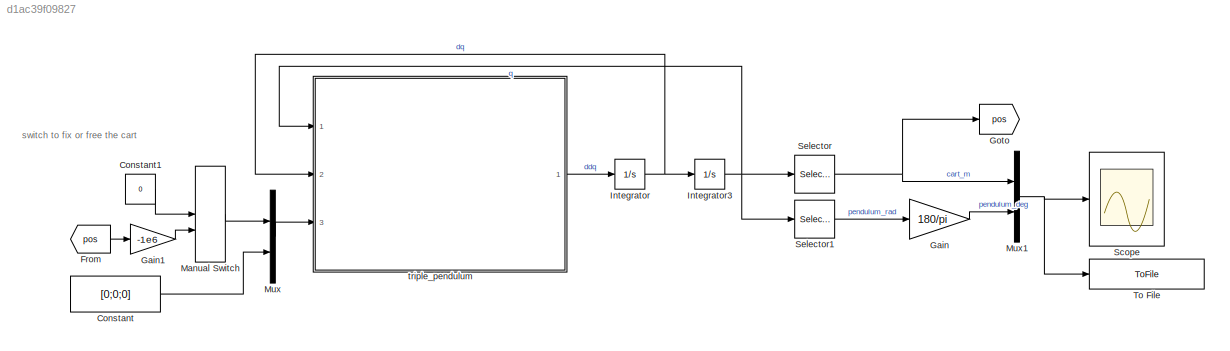
MODEL slx_d1ac39f09827
KIND model
CONFIG AbsTol = auto
CONFIG EnableMultiTasking = off
CONFIG FixedStep = auto
CONFIG MaxStep = auto
CONFIG MinStep = auto
CONFIG RelTol = 1e-3
CONFIG SampleTimeConstraint = Unconstrained
CONFIG SolverName = VariableStepAuto
CONFIG StartTime = 0.0
CONFIG StopTime = 60
BLOCK [Constant] Constant
  Value = [0;0;0]
BLOCK [Constant] Constant1
  Value = 0
BLOCK [From] From
  GotoTag = pos
BLOCK [Gain] Gain
  Gain = 180/pi
BLOCK [Gain] Gain1
  Gain = -1e6
BLOCK [Goto] Goto
  GotoTag = pos
BLOCK [Integrator] Integrator
  InitialCondition = [0;0;0;0]
  Ports = [1, 1]
BLOCK [Integrator] Integrator3
  InitialCondition = [0;2.62;0;0]
  Ports = [1, 1]
BLOCK [ManualSwitch] Manual Switch
BLOCK [Mux] Mux
  DisplayOption = bar
  Inputs = 2
  Ports = [2, 1]
BLOCK [Mux] Mux1
  DisplayOption = bar
  Inputs = 2
  Ports = [2, 1]
BLOCK [Scope] Scope
  Floating = off
  NumInputPorts = 1
  Ports = [1]
  ScopeSpecificationString = Simulink.scopes.TimeScopeBlockCfg('CurrentConfiguration', extmgr.ConfigurationSet(extmgr.Configuration('Core','General UI',true),extmgr.Configuration('Core','Source UI',true),extmgr.Configuration('Sources','WiredSimulink',true,'SampleTime','0.01'),extmgr.Configuration('Visuals','Time Domain',true,'SerializedDisplays',{struct('MinYLimReal','-98.96326','MaxYLimReal','224.90782','YLabelReal','','MinY...<+1504ch>
BLOCK [Selector] Selector
  IndexOptions = Index vector (dialog)
  Indices = 1
  InputPortWidth = 4
  OutputSizes = 1
  Ports = [1, 1]
BLOCK [Selector] Selector1
  IndexOptions = Index vector (dialog)
  Indices = [2,3,4]
  InputPortWidth = 4
  OutputSizes = 1
  Ports = [1, 1]
BLOCK [ToFile] To File
  Filename = data/simout.mat
  MatrixName = position
  Ports = [1]
  SampleTime = 0.01
  SaveFormat = Timeseries
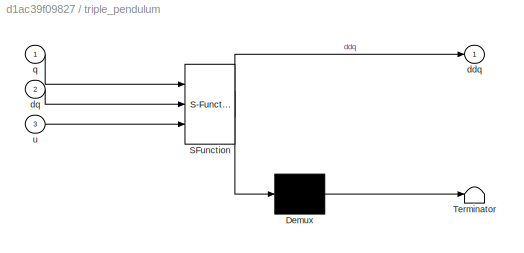
BLOCK [SubSystem] triple_pendulum
  ErrorFcn = Stateflow.Translate.translate
  PermitHierarchicalResolution = ExplicitOnly
  Ports = [3, 1]
  RequestExecContextInheritance = off
  SFBlockType = MATLAB Function
  TreatAsAtomicUnit = on
BLOCK [Demux] triple_pendulum/ Demux 
  Outputs = 1
  Ports = [1, 1]
BLOCK [S-Function] triple_pendulum/ SFunction 
  EnableBusSupport = on
  FunctionName = sf_sfun
  PortCounts = [3 2]
  Ports = [3, 2]
  SFcnIsStateOwnerBlock = off
  SFunctionDeploymentMode = off
  Tag = Stateflow S-Function 2
BLOCK [Terminator] triple_pendulum/ Terminator 
BLOCK [Outport] triple_pendulum/ddq
BLOCK [Inport] triple_pendulum/dq
  Port = 2
BLOCK [Inport] triple_pendulum/q
BLOCK [Inport] triple_pendulum/u
  Port = 3
ANNOTATION (root): switch to fix or free the cart
LINE Constant1:1 -> Manual Switch:1
LINE Constant:1 -> Mux:2
LINE From:1 -> Gain1:1
LINE Gain1:1 -> Manual Switch:2
LINE Gain:1 -> Mux1:2
NET Integrator3:1 -> Selector1:1, Selector:1, triple_pendulum:1
NET Integrator:1 -> Integrator3:1, triple_pendulum:2
LINE Manual Switch:1 -> Mux:1
NET Mux1:1 -> Scope:1, To File:1
LINE Mux:1 -> triple_pendulum:3
LINE Selector1:1 -> Gain:1
NET Selector:1 -> Goto:1, Mux1:1
LINE triple_pendulum:1 -> Integrator:1
note: NET lines group one-source signal fan-out (src -> all destinations, sorted); 1:1 wires keep LINE
CHART triple_pendulum states=1 transitions=1
  STATE_LABEL 'eML_blk_kernel()'
  STATE_LABEL 'SCRIPT:\nfunction ddq = triple_pendulum(q,dq,u)\n    ddq = ode(q(1),q(2),q(3),q(4),dq(1),dq(2),dq(3),dq(4),u(1),u(2),u(3),u(4));\nend'
CHART  states=0 transitions=0
